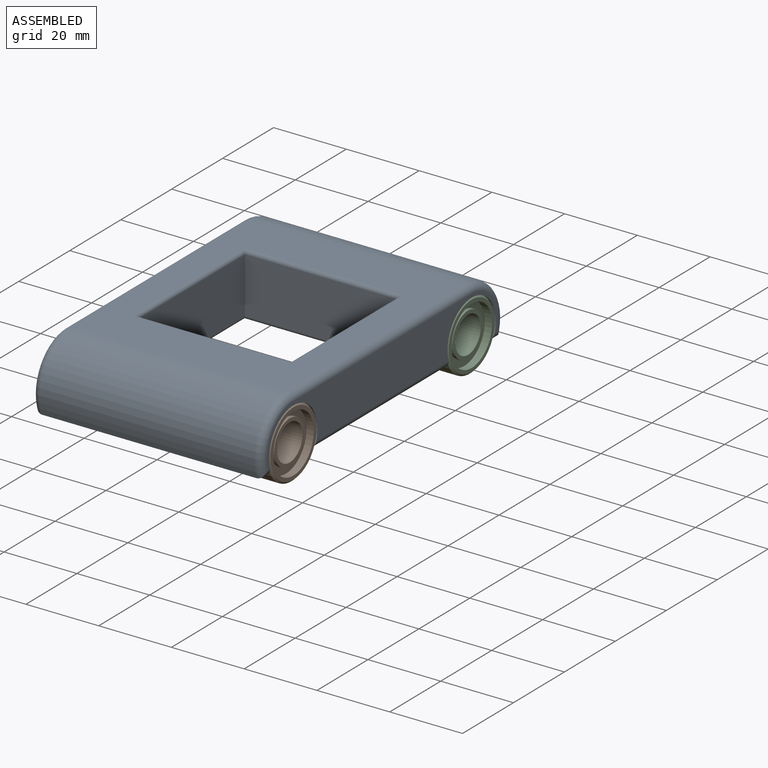
[diagram: assembled view]
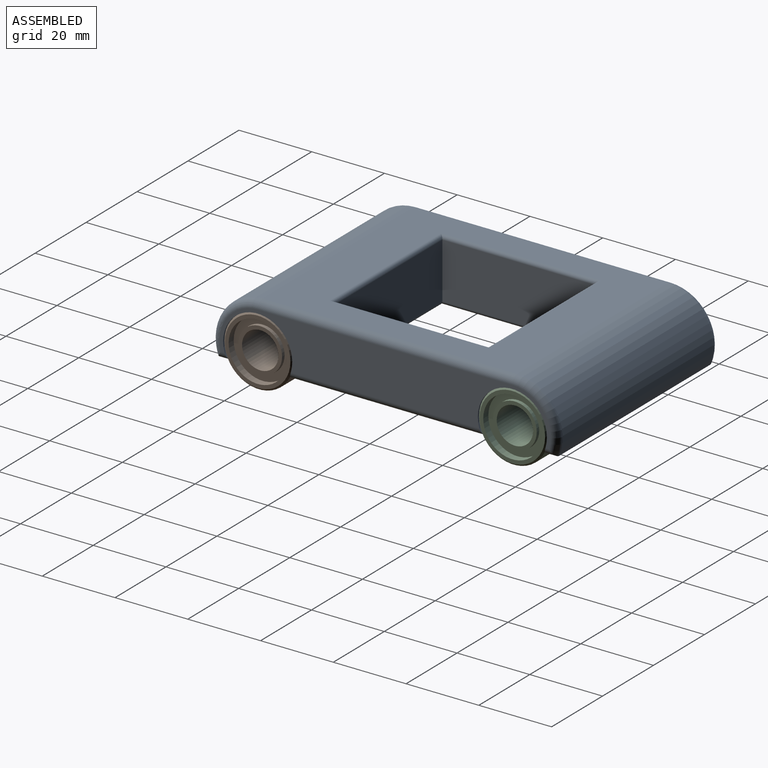
[diagram: assembled view, second angle]
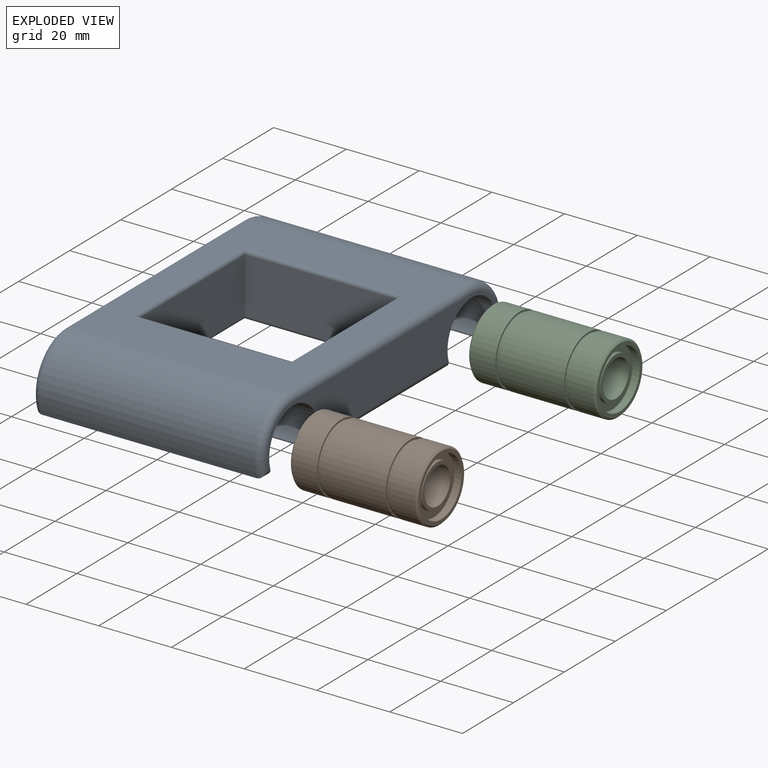
[diagram: exploded view]
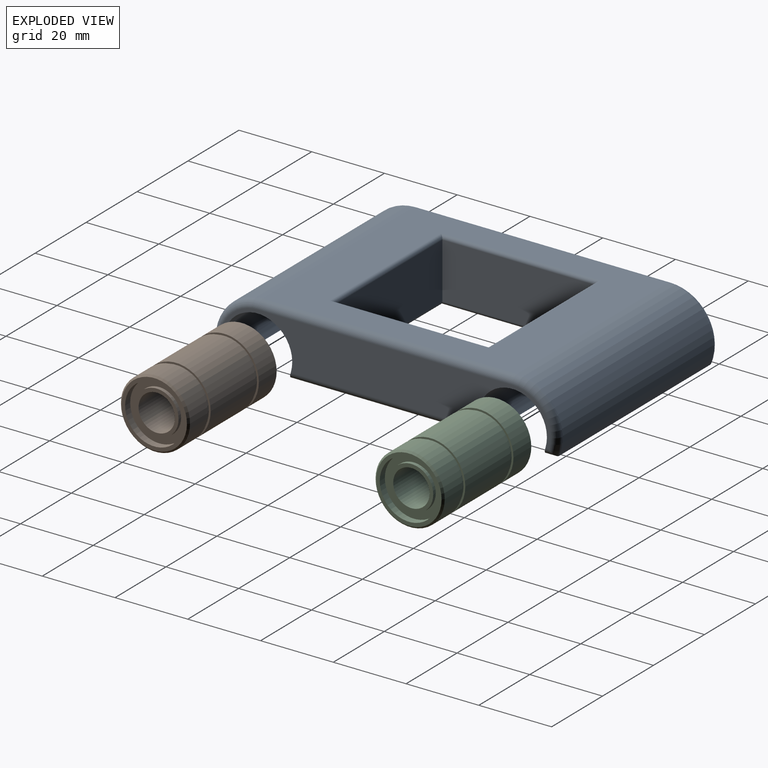
[diagram: exploded view, second angle]
ASSEMBLY  parts=3 mates=2
PART A: 38 faces, bbox 63x97.1x18.7 mm
  f0: plane 93.12x59mm, normal (0,0,-1), area 1781.3mm2, adj f2,f3,f4,f5,f6,f7,f10,f11
  f1: plane 70x59mm, normal (0,0,1), area 2194mm2, adj f6,f7,f21,f26,f34,f35,f36,f37
  f2: cylinder r=9.5mm len=29mm, axis (-1,0,0), area 1152.1mm2, adj f0,f9,f13,f20,f28
  f3: cylinder r=9.5mm len=29mm, axis (-1,0,0), area 1152.1mm2, adj f0,f9,f10,f18,f28
  f4: cylinder r=9.5mm len=29mm, axis (-1,0,0), area 1152.1mm2, adj f0,f8,f12,f25,f29
  f5: cylinder r=9.5mm len=29mm, axis (-1,0,0), area 1152.1mm2, adj f0,f8,f11,f23,f29
  f6: cylinder r=12.5mm len=59mm, axis (-1,0,0), area 1445.9mm2, adj f0,f1,f19,f24
  f7: cylinder r=12.5mm len=59mm, axis (-1,0,0), area 1445.9mm2, adj f0,f1,f22,f27
  f8: plane 91x13.25mm, normal (1,0,0), area 771.2mm2, adj f4,f5,f23,f24,f25,f26,f27,f29
  f9: plane 91x13.25mm, normal (-1,0,0), area 771.2mm2, adj f2,f3,f18,f19,f20,f21,f22,f28
  f10: plane 19x14.25mm, normal (-1,0,0), area 228.1mm2, adj f0,f3
  f11: plane 19x14.25mm, normal (1,0,0), area 228.1mm2, adj f0,f5
  f12: plane 19x14.25mm, normal (1,0,0), area 228.1mm2, adj f0,f4
  f13: plane 19x14.25mm, normal (-1,0,0), area 228.1mm2, adj f0,f2
  f14: plane 42x15.25mm, normal (0,-1,0), area 640.5mm2, adj f15,f17,f33,f34
  f15: plane 42x15.25mm, normal (1,0,0), area 640.5mm2, adj f14,f16,f31,f35
  f16: plane 42x15.25mm, normal (0,1,0), area 640.5mm2, adj f15,f17,f30,f37
  f17: plane 42x15.25mm, normal (-1,0,0), area 640.5mm2, adj f14,f16,f32,f36
  f18: cylinder r=2mm len=3.34mm, axis (0,1,0), area 7.8mm2, adj f0,f3,f9,f19
  f19: torus R=10.5mm, axis (1,0,0), area 71mm2, adj f6,f9,f18,f21
  f20: cylinder r=2mm len=3.34mm, axis (0,1,0), area 7.8mm2, adj f0,f2,f9,f22
  f21: cylinder r=2mm len=70mm, axis (0,-1,0), area 219.9mm2, adj f1,f9,f19,f22
  f22: torus R=10.5mm, axis (1,0,0), area 71mm2, adj f7,f9,f20,f21
  f23: cylinder r=2mm len=3.34mm, axis (0,-1,0), area 7.8mm2, adj f0,f5,f8,f24
  f24: torus R=10.5mm, axis (1,0,0), area 71mm2, adj f6,f8,f23,f26
  f25: cylinder r=2mm len=3.34mm, axis (0,-1,0), area 7.8mm2, adj f0,f4,f8,f27
  f26: cylinder r=2mm len=70mm, axis (0,1,0), area 219.9mm2, adj f1,f8,f24,f27
  f27: torus R=10.5mm, axis (1,0,0), area 71mm2, adj f7,f8,f25,f26
  f28: cylinder r=2mm len=53.55mm, axis (0,-1,0), area 166mm2, adj f0,f2,f3,f9
  f29: cylinder r=2mm len=53.55mm, axis (0,1,0), area 166mm2, adj f0,f4,f5,f8
  f30: cylinder r=1mm len=44mm, axis (1,0,0), area 67.1mm2, adj f0,f16,f31,f32
  f31: cylinder r=1mm len=44mm, axis (0,-1,0), area 67.1mm2, adj f0,f15,f30,f33
  f32: cylinder r=1mm len=44mm, axis (0,1,0), area 67.1mm2, adj f0,f17,f30,f33
  f33: cylinder r=1mm len=44mm, axis (-1,0,0), area 67.1mm2, adj f0,f14,f31,f32
  f34: cylinder r=1mm len=44mm, axis (1,0,0), area 67.1mm2, adj f1,f14,f35,f36
  f35: cylinder r=1mm len=44mm, axis (0,1,0), area 67.1mm2, adj f1,f15,f34,f37
  f36: cylinder r=1mm len=44mm, axis (0,-1,0), area 67.1mm2, adj f1,f17,f34,f37
  f37: cylinder r=1mm len=44mm, axis (-1,0,0), area 67.1mm2, adj f1,f16,f35,f36
PART B: 22 faces, bbox 19x35x19 mm
  f0: plane 18x18mm, normal (0,-1,0), area 53.4mm2, adj f1,f21
  f1: cylinder r=8mm len=16mm, axis (0,1,0), area 100.5mm2, adj f0,f2
  f2: plane 16x16mm, normal (0,-1,0), area 88mm2, adj f1,f3
  f3: cylinder r=6mm len=12mm, axis (0,1,0), area 37.7mm2, adj f2,f4
  f4: plane 12x12mm, normal (0,-1,0), area 34.6mm2, adj f3,f5
  f5: cylinder r=5mm len=33mm, axis (0,1,0), area 1036.7mm2, adj f4,f6
  f6: plane 12x12mm, normal (0,1,0), area 34.6mm2, adj f5,f7
  f7: cylinder r=6mm len=12mm, axis (0,1,0), area 37.7mm2, adj f6,f8
  f8: plane 16x16mm, normal (0,1,0), area 88mm2, adj f7,f9
  f9: cylinder r=8mm len=16mm, axis (0,1,0), area 100.5mm2, adj f8,f10
  f10: plane 18x18mm, normal (0,1,0), area 53.4mm2, adj f9,f11
  f11: cone r=9mm half-angle=45deg, axis (0,-1,0), area 41.1mm2, adj f10,f12
  f12: cylinder r=9.5mm len=19mm, axis (0,1,0), area 417.8mm2, adj f11,f13
  f13: plane 19x19mm, normal (0,-1,0), area 29.1mm2, adj f12,f14
  f14: cylinder r=9mm len=18mm, axis (0,1,0), area 62.2mm2, adj f13,f15
  f15: plane 19x19mm, normal (0,1,0), area 29.1mm2, adj f14,f16
  f16: cylinder r=9.5mm len=19mm, axis (0,1,0), area 1062.5mm2, adj f15,f17
  f17: plane 19x19mm, normal (0,-1,0), area 29.1mm2, adj f16,f18
  f18: cylinder r=9mm len=18mm, axis (0,1,0), area 62.2mm2, adj f17,f19
  f19: plane 19x19mm, normal (0,1,0), area 29.1mm2, adj f18,f20
  f20: cylinder r=9.5mm len=19mm, axis (0,1,0), area 417.8mm2, adj f19,f21
  f21: cone r=9mm half-angle=45deg, axis (0,1,0), area 41.1mm2, adj f0,f20
PART C: same geometry as B
PLACE A at identity
PLACE B rot(axis=(-0.58,0.58,0.58),120deg) t=(16.5,-35,-3.88)mm
PLACE C rot(axis=(-0.58,0.58,0.58),120deg) t=(16.5,35,-3.88)mm
MATE fastened B.f1 <-> A.f2  axis (1,0,0) through (34,-35,-3.88)mm
MATE fastened C.f1 <-> A.f3  axis (1,0,0) through (34,35,-3.88)mm
